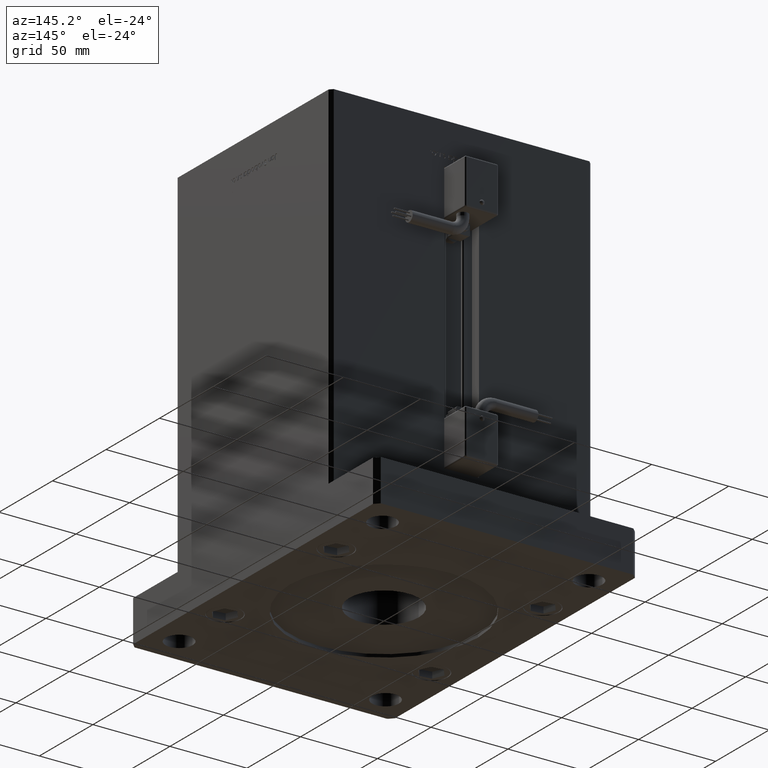
[diagram: clean part render]
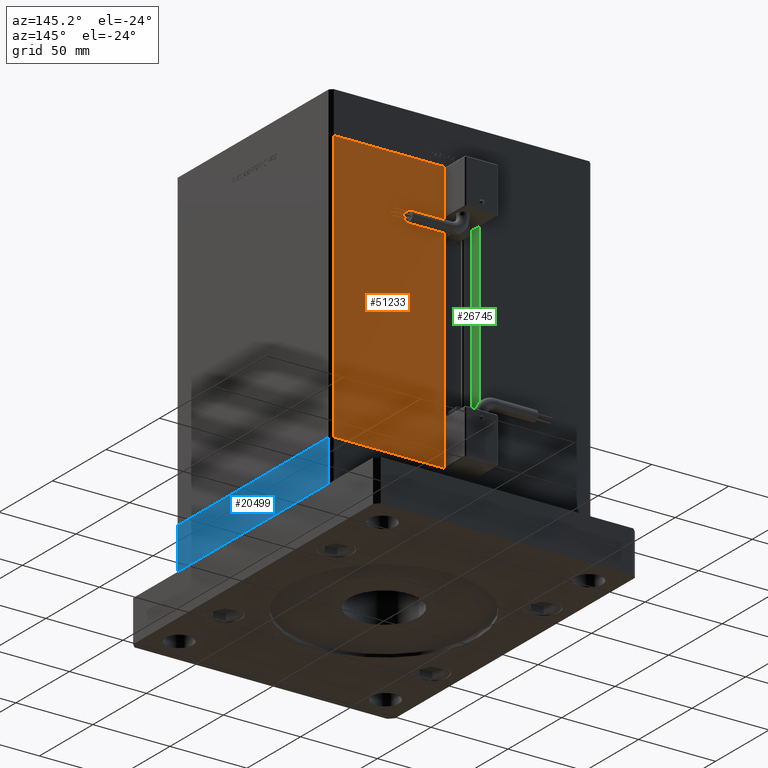
[diagram: same view with three faces highlighted in distinct colors, each labeled with its STEP entity id]
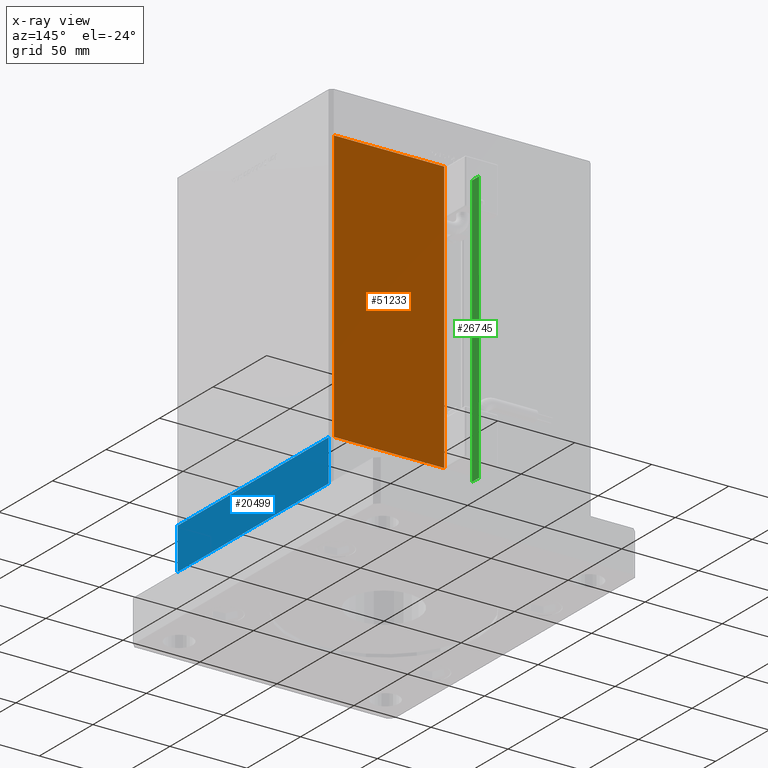
[diagram: x-ray of the same camera — body ghosted, the three highlighted faces saturated]
A machine part, auxiliary view with three faces highlighted in distinct colors.
The next image is the same camera in x-ray (body ghosted, the three faces saturated) — at least one of them is partly hidden behind the body in this view.
Their STEP definitions:

[orange] entity #51233 — the highlighted planar face has unit normal (0, -1, 0).
#178 = VERTEX_POINT ( 'NONE', #6597 ) ;
#1791 = DIRECTION ( 'NONE',  ( 1.000000000000000000, 0.000000000000000000, 0.000000000000000000 ) ) ;
#5484 = ORIENTED_EDGE ( 'NONE', *, *, #14419, .T. ) ;
#6121 = CARTESIAN_POINT ( 'NONE',  ( -11.25000000000000178, 72.49999999999998579, 176.0000000000000000 ) ) ;
#6597 = CARTESIAN_POINT ( 'NONE',  ( 83.00000000000001421, 72.49999999999998579, 0.000000000000000000 ) ) ;
#6908 = ORIENTED_EDGE ( 'NONE', *, *, #35189, .T. ) ;
#8685 = CARTESIAN_POINT ( 'NONE',  ( 11.24999999999999467, 72.49999999999998579, 176.0000000000000000 ) ) ;
#14419 = EDGE_CURVE ( 'NONE', #47524, #37446, #46197, .T. ) ;
#14944 = CARTESIAN_POINT ( 'NONE',  ( -11.25000000000000178, 72.49999999999998579, 0.000000000000000000 ) ) ;
#15436 = CARTESIAN_POINT ( 'NONE',  ( 83.00000000000001421, 72.49999999999998579, 176.0000000000000000 ) ) ;
#16322 = VECTOR ( 'NONE', #1791, 1000.000000000000000 ) ;
#16495 = VECTOR ( 'NONE', #49748, 1000.000000000000000 ) ;
#19680 = CARTESIAN_POINT ( 'NONE',  ( 83.00000000000001421, 72.49999999999998579, 176.0000000000000000 ) ) ;
#19724 = VERTEX_POINT ( 'NONE', #19680 ) ;
#20392 = ORIENTED_EDGE ( 'NONE', *, *, #34160, .T. ) ;
#21953 = VECTOR ( 'NONE', #24499, 1000.000000000000000 ) ;
#22157 = EDGE_LOOP ( 'NONE', ( #20392, #5484, #36098, #6908 ) ) ;
#22943 = DIRECTION ( 'NONE',  ( 0.000000000000000000, -1.000000000000000000, 0.000000000000000000 ) ) ;
#23744 = AXIS2_PLACEMENT_3D ( 'NONE', #6121, #22943, #53188 ) ;
#24499 = DIRECTION ( 'NONE',  ( -0.000000000000000000, -0.000000000000000000, 1.000000000000000000 ) ) ;
#30038 = EDGE_CURVE ( 'NONE', #37446, #19724, #35720, .T. ) ;
#32020 = CARTESIAN_POINT ( 'NONE',  ( -11.25000000000000178, 72.49999999999998579, 176.0000000000000000 ) ) ;
#34160 = EDGE_CURVE ( 'NONE', #178, #47524, #54565, .T. ) ;
#35189 = EDGE_CURVE ( 'NONE', #19724, #178, #54508, .T. ) ;
#35720 = LINE ( 'NONE', #32020, #16322 ) ;
#35786 = PLANE ( 'NONE',  #23744 ) ;
#36098 = ORIENTED_EDGE ( 'NONE', *, *, #30038, .T. ) ;
#37446 = VERTEX_POINT ( 'NONE', #8685 ) ;
#37460 = VECTOR ( 'NONE', #50251, 1000.000000000000000 ) ;
#46197 = LINE ( 'NONE', #46478, #21953 ) ;
#46478 = CARTESIAN_POINT ( 'NONE',  ( 11.25000000000000178, 72.49999999999998579, 0.000000000000000000 ) ) ;
#47524 = VERTEX_POINT ( 'NONE', #51066 ) ;
#49748 = DIRECTION ( 'NONE',  ( -1.000000000000000000, 0.000000000000000000, 0.000000000000000000 ) ) ;
#50044 = FACE_OUTER_BOUND ( 'NONE', #22157, .T. ) ;
#50251 = DIRECTION ( 'NONE',  ( -0.000000000000000000, -0.000000000000000000, -1.000000000000000000 ) ) ;
#51066 = CARTESIAN_POINT ( 'NONE',  ( 11.25000000000000178, 72.49999999999998579, 0.000000000000000000 ) ) ;
#51233 = ADVANCED_FACE ( 'NONE', ( #50044 ), #35786, .F. ) ;
#53188 = DIRECTION ( 'NONE',  ( 0.000000000000000000, -0.000000000000000000, -1.000000000000000000 ) ) ;
#54508 = LINE ( 'NONE', #15436, #37460 ) ;
#54565 = LINE ( 'NONE', #14944, #16495 ) ;

[blue] entity #20499 — the highlighted planar face has unit normal (1, 0, 0).
#740 = CARTESIAN_POINT ( 'NONE',  ( -85.00000000000001421, 70.49999999999997158, -27.00000000000000000 ) ) ;
#2894 = CARTESIAN_POINT ( 'NONE',  ( -85.00000000000001421, -70.50000000000000000, -27.00000000000000000 ) ) ;
#4023 = VERTEX_POINT ( 'NONE', #55068 ) ;
#4493 = EDGE_CURVE ( 'NONE', #4023, #10540, #48107, .T. ) ;
#6031 = ORIENTED_EDGE ( 'NONE', *, *, #19715, .F. ) ;
#6220 = CARTESIAN_POINT ( 'NONE',  ( -85.00000000000001421, -70.50000000000000000, 0.000000000000000000 ) ) ;
#6736 = CARTESIAN_POINT ( 'NONE',  ( -85.00000000000001421, 70.49999999999997158, -27.00000000000000000 ) ) ;
#6838 = DIRECTION ( 'NONE',  ( 0.000000000000000000, 0.000000000000000000, 1.000000000000000000 ) ) ;
#10540 = VERTEX_POINT ( 'NONE', #2894 ) ;
#12005 = ORIENTED_EDGE ( 'NONE', *, *, #54363, .F. ) ;
#14147 = DIRECTION ( 'NONE',  ( 0.000000000000000000, 0.000000000000000000, 1.000000000000000000 ) ) ;
#15674 = VECTOR ( 'NONE', #14147, 1000.000000000000000 ) ;
#19610 = CARTESIAN_POINT ( 'NONE',  ( -85.00000000000001421, 70.49999999999997158, 0.000000000000000000 ) ) ;
#19715 = EDGE_CURVE ( 'NONE', #32373, #29401, #53639, .T. ) ;
#20499 = ADVANCED_FACE ( 'NONE', ( #50083 ), #28395, .T. ) ;
#23412 = AXIS2_PLACEMENT_3D ( 'NONE', #6736, #31545, #50924 ) ;
#23968 = CARTESIAN_POINT ( 'NONE',  ( -85.00000000000001421, 70.49999999999997158, 0.000000000000000000 ) ) ;
#26154 = VECTOR ( 'NONE', #34407, 1000.000000000000000 ) ;
#27382 = EDGE_CURVE ( 'NONE', #10540, #29401, #27657, .T. ) ;
#27657 = LINE ( 'NONE', #49911, #38122 ) ;
#27940 = VECTOR ( 'NONE', #49379, 1000.000000000000000 ) ;
#28395 = PLANE ( 'NONE',  #23412 ) ;
#29401 = VERTEX_POINT ( 'NONE', #6220 ) ;
#31545 = DIRECTION ( 'NONE',  ( -1.000000000000000000, 0.000000000000000000, 0.000000000000000000 ) ) ;
#32373 = VERTEX_POINT ( 'NONE', #19610 ) ;
#34407 = DIRECTION ( 'NONE',  ( 0.000000000000000000, -1.000000000000000000, 0.000000000000000000 ) ) ;
#38008 = ORIENTED_EDGE ( 'NONE', *, *, #27382, .T. ) ;
#38082 = EDGE_LOOP ( 'NONE', ( #6031, #12005, #40270, #38008 ) ) ;
#38122 = VECTOR ( 'NONE', #6838, 1000.000000000000000 ) ;
#40270 = ORIENTED_EDGE ( 'NONE', *, *, #4493, .T. ) ;
#43357 = CARTESIAN_POINT ( 'NONE',  ( -85.00000000000001421, 70.49999999999997158, -27.00000000000000000 ) ) ;
#48107 = LINE ( 'NONE', #740, #26154 ) ;
#49379 = DIRECTION ( 'NONE',  ( 0.000000000000000000, -1.000000000000000000, 0.000000000000000000 ) ) ;
#49525 = LINE ( 'NONE', #43357, #15674 ) ;
#49911 = CARTESIAN_POINT ( 'NONE',  ( -85.00000000000001421, -70.50000000000000000, -27.00000000000000000 ) ) ;
#50083 = FACE_OUTER_BOUND ( 'NONE', #38082, .T. ) ;
#50924 = DIRECTION ( 'NONE',  ( 0.000000000000000000, 0.000000000000000000, 1.000000000000000000 ) ) ;
#53639 = LINE ( 'NONE', #23968, #27940 ) ;
#54363 = EDGE_CURVE ( 'NONE', #4023, #32373, #49525, .T. ) ;
#55068 = CARTESIAN_POINT ( 'NONE',  ( -85.00000000000001421, 70.49999999999997158, -27.00000000000000000 ) ) ;

[green] entity #26745 — the highlighted planar face has unit normal (-1, 0, 0).
#411 = ORIENTED_EDGE ( 'NONE', *, *, #42877, .F. ) ;
#3678 = CARTESIAN_POINT ( 'NONE',  ( -11.25000000000000178, 65.99999999999997158, 0.000000000000000000 ) ) ;
#7502 = CARTESIAN_POINT ( 'NONE',  ( -11.25000000000000178, 0.000000000000000000, 176.0000000000000000 ) ) ;
#7540 = VECTOR ( 'NONE', #34753, 1000.000000000000000 ) ;
#8062 = DIRECTION ( 'NONE',  ( 0.000000000000000000, 0.000000000000000000, 1.000000000000000000 ) ) ;
#9635 = CARTESIAN_POINT ( 'NONE',  ( -11.25000000000000178, 72.49999999999998579, 0.000000000000000000 ) ) ;
#11521 = CARTESIAN_POINT ( 'NONE',  ( -11.25000000000000178, 72.49999999999998579, 176.0000000000000000 ) ) ;
#15225 = VERTEX_POINT ( 'NONE', #51464 ) ;
#16604 = PLANE ( 'NONE',  #52647 ) ;
#22852 = EDGE_CURVE ( 'NONE', #48504, #40552, #54550, .T. ) ;
#23062 = CARTESIAN_POINT ( 'NONE',  ( -11.25000000000000178, 65.99999999999997158, 0.000000000000000000 ) ) ;
#23861 = VECTOR ( 'NONE', #29617, 1000.000000000000000 ) ;
#26745 = ADVANCED_FACE ( 'NONE', ( #43424 ), #16604, .F. ) ;
#28603 = DIRECTION ( 'NONE',  ( 0.000000000000000000, 1.000000000000000000, 0.000000000000000000 ) ) ;
#29337 = CARTESIAN_POINT ( 'NONE',  ( -11.25000000000000178, 72.49999999999998579, 0.000000000000000000 ) ) ;
#29617 = DIRECTION ( 'NONE',  ( -0.000000000000000000, -0.000000000000000000, 1.000000000000000000 ) ) ;
#31349 = DIRECTION ( 'NONE',  ( -0.000000000000000000, -0.000000000000000000, 1.000000000000000000 ) ) ;
#33414 = EDGE_CURVE ( 'NONE', #15225, #48504, #51915, .T. ) ;
#34753 = DIRECTION ( 'NONE',  ( -0.000000000000000000, -1.000000000000000000, -0.000000000000000000 ) ) ;
#38260 = ORIENTED_EDGE ( 'NONE', *, *, #22852, .F. ) ;
#38838 = ORIENTED_EDGE ( 'NONE', *, *, #33414, .F. ) ;
#39234 = VECTOR ( 'NONE', #31349, 1000.000000000000000 ) ;
#39317 = VERTEX_POINT ( 'NONE', #9635 ) ;
#39979 = EDGE_CURVE ( 'NONE', #39317, #40552, #51024, .T. ) ;
#40552 = VERTEX_POINT ( 'NONE', #11521 ) ;
#40703 = VECTOR ( 'NONE', #28603, 1000.000000000000000 ) ;
#42877 = EDGE_CURVE ( 'NONE', #39317, #15225, #51594, .T. ) ;
#43424 = FACE_OUTER_BOUND ( 'NONE', #49763, .T. ) ;
#43931 = CARTESIAN_POINT ( 'NONE',  ( -11.25000000000000178, 65.99999999999997158, 176.0000000000000000 ) ) ;
#47135 = DIRECTION ( 'NONE',  ( -1.000000000000000000, 0.000000000000000000, 0.000000000000000000 ) ) ;
#48504 = VERTEX_POINT ( 'NONE', #43931 ) ;
#49763 = EDGE_LOOP ( 'NONE', ( #38838, #411, #54852, #38260 ) ) ;
#51024 = LINE ( 'NONE', #29337, #23861 ) ;
#51464 = CARTESIAN_POINT ( 'NONE',  ( -11.25000000000000178, 65.99999999999997158, 0.000000000000000000 ) ) ;
#51594 = LINE ( 'NONE', #3678, #7540 ) ;
#51693 = CARTESIAN_POINT ( 'NONE',  ( -11.25000000000000178, 65.99999999999997158, 0.000000000000000000 ) ) ;
#51915 = LINE ( 'NONE', #23062, #39234 ) ;
#52647 = AXIS2_PLACEMENT_3D ( 'NONE', #51693, #47135, #8062 ) ;
#54550 = LINE ( 'NONE', #7502, #40703 ) ;
#54852 = ORIENTED_EDGE ( 'NONE', *, *, #39979, .T. ) ;